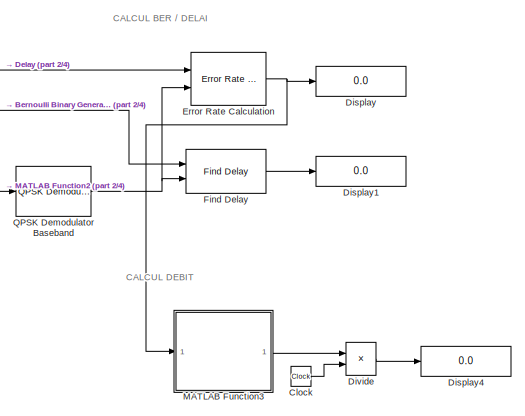
[diagram: root canvas - part 1/4, top right region]
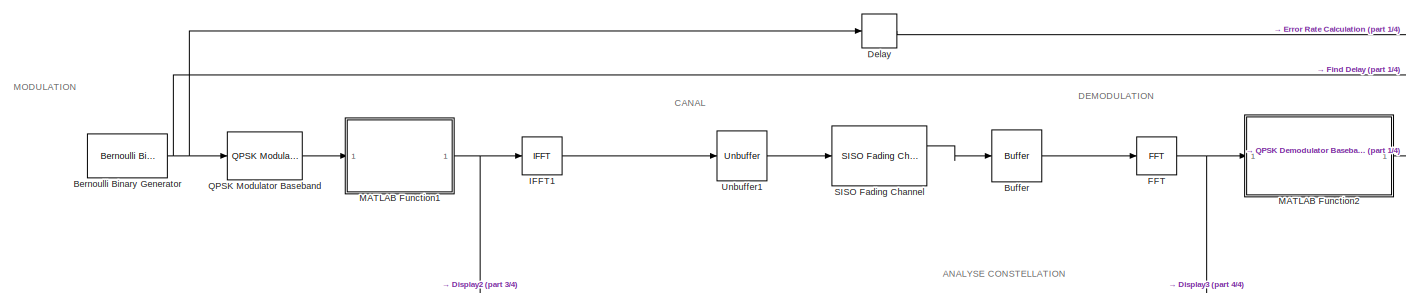
[diagram: root canvas - part 2/4, top center region]
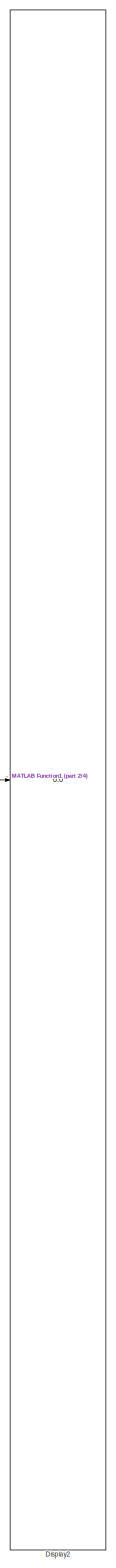
[diagram: root canvas - part 3/4, center side, full height]
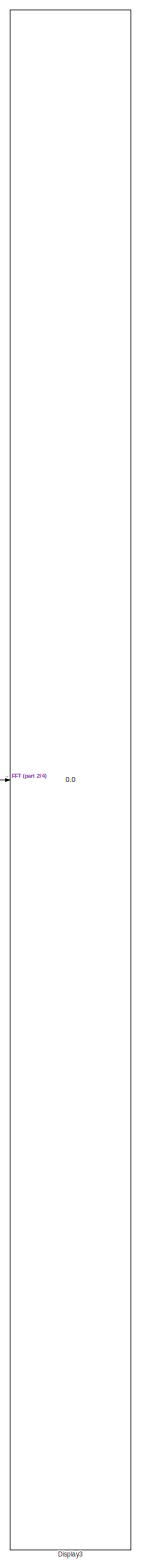
[diagram: root canvas - part 4/4, right side, full height]
MODEL slx_8597013de382
KIND model
CONFIG AbsTol = auto
CONFIG EnableMultiTasking = off
CONFIG FixedStep = auto
CONFIG InitFcn = %global Ts\n%global nbSymboles\n%global ratioPiloSymb\n%global puissanceDeDeux\n%global nbPilotes\n%global nbZeros\n%global nbDeBits\n\nclear all;\n\nTs = 6e-6;\nnbDeBits = 400\nnbSymboles = nbDeBits/2\nratioPiloSymb = 20\npuissanceDeDeux = 256\n\nnbPilotes = nbSymboles/ratioPiloSymb;\nnbZeros = puissanceDeDeux - nbSymboles - nbPilotes\n\n\n
CONFIG MaxStep = auto
CONFIG MinStep = auto
CONFIG PreLoadFcn = %global Ts\n%global nbSymboles\n%global ratioPiloSymb\n%global puissanceDeDeux\n%global nbPilotes\n%global nbZeros\n%global nbDeBits\n\nclear all;\n\nTs = 6e-6;\nnbDeBits = 180\nnbSymboles = nbDeBits/2\nratioPiloSymb = 3\npuissanceDeDeux = 128\n\nnbPilotes = nbSymboles/ratioPiloSymb;\nnbZeros = puissanceDeDeux - nbSymboles - nbPilotes\n\n\n\n
CONFIG RelTol = 1e-3
CONFIG SampleTimeConstraint = Unconstrained
CONFIG Solver = FixedStepDiscrete
CONFIG SolverName = FixedStepDiscrete
CONFIG StartTime = 0.0
CONFIG StopTime = inf
WORKSPACE source: MAT-file member
WORKSPACE MCOS: class17 (value not decoded)
BLOCK [Reference] Bernoulli Binary Generator  REF=commrandsrc3/Bernoulli Binary
Generator
  Ports = [0, 1]
  SourceBlock = commrandsrc3/Bernoulli Binary\nGenerator
  SourceProductBaseCode = CM
  SourceProductName = Communications Toolbox
  SourceType = Bernoulli Binary Generator
BLOCK [Buffer] Buffer
  N = puissanceDeDeux
  OutputFrames = off
BLOCK [Clock] Clock
BLOCK [Delay] Delay
  DelayLength = 1
  InitialCondition = 0
  InputPortMap = u0
  Ports = [1, 1]
BLOCK [Display] Display
  Decimation = 1
  Ports = [1]
BLOCK [Display] Display1
  Decimation = 1
  Ports = [1]
BLOCK [Display] Display2
  Decimation = 1
  Ports = [1]
BLOCK [Display] Display3
  Decimation = 1
  Ports = [1]
BLOCK [Display] Display4
  Decimation = 1
  Ports = [1]
BLOCK [Product] Divide
  InputSameDT = off
  Inputs = */
  OutDataTypeStr = Inherit: Inherit via internal rule
  Ports = [2, 1]
BLOCK [Reference] Error Rate Calculation  REF=commsink2/Error Rate
Calculation
  Ports = [2, 1]
  SourceBlock = commsink2/Error Rate\nCalculation
  SourceProductBaseCode = CM
  SourceProductName = Communications Toolbox
  SourceType = Error Rate Calculation
BLOCK [Reference] FFT  REF=dspxfrm3/FFT
  Ports = [1, 1]
  SourceBlock = dspxfrm3/FFT
  SourceProductBaseCode = DS
  SourceProductName = DSP System Toolbox
  SourceType = FFT
BLOCK [Reference] Find Delay  REF=commutil2/Find Delay
  Ports = [2, 1]
  SourceBlock = commutil2/Find Delay
  SourceProductBaseCode = CM
  SourceProductName = Communications Toolbox
  SourceType = Find Delay
BLOCK [Reference] IFFT1  REF=dspxfrm3/IFFT
  Ports = [1, 1]
  SourceBlock = dspxfrm3/IFFT
  SourceProductBaseCode = DS
  SourceProductName = DSP System Toolbox
  SourceType = IFFT
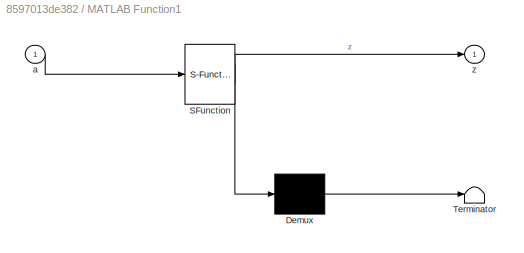
BLOCK [SubSystem] MATLAB Function1
  ErrorFcn = Stateflow.Translate.translate
  PermitHierarchicalResolution = ExplicitOnly
  Ports = [1, 1]
  RequestExecContextInheritance = off
  SFBlockType = MATLAB Function
  TreatAsAtomicUnit = on
BLOCK [Demux] MATLAB Function1/ Demux 
  Outputs = 1
  Ports = [1, 1]
BLOCK [S-Function] MATLAB Function1/ SFunction 
  EnableBusSupport = on
  FunctionName = sf_sfun
  Parameters = nbSymboles,nbZeros,puissanceDeDeux,ratioPiloSymb
  PortCounts = [1 2]
  Ports = [1, 2]
  SFcnIsStateOwnerBlock = off
  SFunctionDeploymentMode = off
  Tag = Stateflow S-Function troisSymbolesAlgoBeton 1
BLOCK [Terminator] MATLAB Function1/ Terminator 
BLOCK [Inport] MATLAB Function1/a
  IconDisplay = Port number
BLOCK [Outport] MATLAB Function1/z
  IconDisplay = Port number
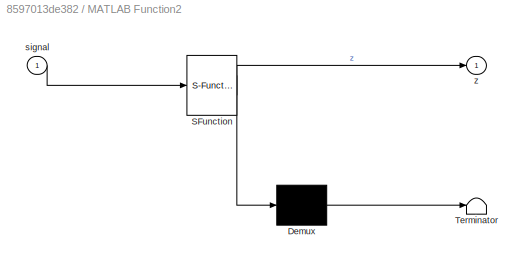
BLOCK [SubSystem] MATLAB Function2
  ErrorFcn = Stateflow.Translate.translate
  PermitHierarchicalResolution = ExplicitOnly
  Ports = [1, 1]
  RequestExecContextInheritance = off
  SFBlockType = MATLAB Function
  TreatAsAtomicUnit = on
BLOCK [Demux] MATLAB Function2/ Demux 
  Outputs = 1
  Ports = [1, 1]
BLOCK [S-Function] MATLAB Function2/ SFunction 
  EnableBusSupport = on
  FunctionName = sf_sfun
  Parameters = nbSymboles,nbZeros,puissanceDeDeux,ratioPiloSymb
  PortCounts = [1 2]
  Ports = [1, 2]
  SFcnIsStateOwnerBlock = off
  SFunctionDeploymentMode = off
  Tag = Stateflow S-Function troisSymbolesAlgoBeton 3
BLOCK [Terminator] MATLAB Function2/ Terminator 
BLOCK [Inport] MATLAB Function2/signal
  IconDisplay = Port number
BLOCK [Outport] MATLAB Function2/z
  IconDisplay = Port number
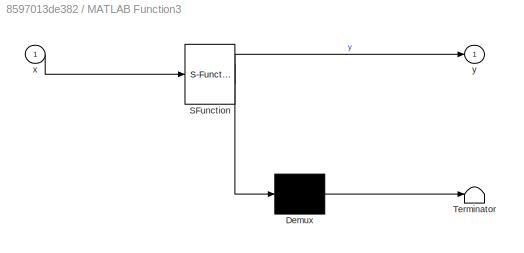
BLOCK [SubSystem] MATLAB Function3
  ErrorFcn = Stateflow.Translate.translate
  PermitHierarchicalResolution = ExplicitOnly
  Ports = [1, 1]
  RequestExecContextInheritance = off
  SFBlockType = MATLAB Function
  TreatAsAtomicUnit = on
BLOCK [Demux] MATLAB Function3/ Demux 
  Outputs = 1
  Ports = [1, 1]
BLOCK [S-Function] MATLAB Function3/ SFunction 
  EnableBusSupport = on
  FunctionName = sf_sfun
  PortCounts = [1 2]
  Ports = [1, 2]
  SFcnIsStateOwnerBlock = off
  SFunctionDeploymentMode = off
  Tag = Stateflow S-Function troisSymbolesAlgoBeton 2
BLOCK [Terminator] MATLAB Function3/ Terminator 
BLOCK [Inport] MATLAB Function3/x
  IconDisplay = Port number
BLOCK [Outport] MATLAB Function3/y
  IconDisplay = Port number
BLOCK [Reference] QPSK Demodulator Baseband  REF=commdigbbndpm3/QPSK
Demodulator
Baseband
  Ports = [1, 1]
  SourceBlock = commdigbbndpm3/QPSK\nDemodulator\nBaseband
  SourceProductBaseCode = CM
  SourceProductName = Communications Toolbox
  SourceType = QPSK Demodulator Baseband
BLOCK [Reference] QPSK Modulator Baseband  REF=commdigbbndpm3/QPSK
Modulator
Baseband
  Ports = [1, 1]
  SourceBlock = commdigbbndpm3/QPSK\nModulator\nBaseband
  SourceProductBaseCode = CM
  SourceProductName = Communications Toolbox
  SourceType = QPSK Modulator Baseband
BLOCK [Reference] SISO Fading Channel  REF=commchan3/SISO Fading Channel
  Ports = [1, 2]
  SourceBlock = commchan3/SISO Fading Channel
  SourceProductBaseCode = CM
  SourceProductName = Communications Toolbox
  SourceType = SISO Fading Channel
BLOCK [Unbuffer] Unbuffer1
  Ports = [1, 1]
  ic = puissanceDeDeux
ANNOTATION (root): ANALYSE CONSTELLATION
ANNOTATION (root): CALCUL BER / DELAI
ANNOTATION (root): CALCUL DEBIT
ANNOTATION (root): CANAL
ANNOTATION (root): DEMODULATION
ANNOTATION (root): MODULATION
NET Bernoulli Binary Generator:1 -> Delay:1, Find Delay:1, QPSK Modulator Baseband:1
LINE Buffer:1 -> FFT:1
LINE Clock:1 -> Divide:2
LINE Delay:1 -> Error Rate Calculation:1
LINE Divide:1 -> Display4:1
NET Error Rate Calculation:1 -> Display:1, MATLAB Function3:1
NET FFT:1 -> Display3:1, MATLAB Function2:1
LINE Find Delay:1 -> Display1:1
LINE IFFT1:1 -> Unbuffer1:1
NET MATLAB Function1:1 -> Display2:1, IFFT1:1
LINE MATLAB Function2:1 -> QPSK Demodulator Baseband:1
LINE MATLAB Function3:1 -> Divide:1
NET QPSK Demodulator Baseband:1 -> Error Rate Calculation:2, Find Delay:2
LINE QPSK Modulator Baseband:1 -> MATLAB Function1:1
LINE SISO Fading Channel:1 -> Buffer:1
LINE Unbuffer1:1 -> SISO Fading Channel:1
note: NET lines group one-source signal fan-out (src -> all destinations, sorted); 1:1 wires keep LINE
CHART MATLAB Function1 states=1 transitions=1
  STATE_LABEL 'eML_blk_kernel()'
  STATE_LABEL 'SCRIPT:\nfunction z = AjoutPilotesZeros(a, puissanceDeDeux, nbZeros, nbSymboles, ratioPiloSymb)\n\nz = complex(zeros(puissanceDeDeux,1));\n\nk = 1;\n\nfor p = 1:nbSymboles\n    if p == nbSymboles/2 + 1\n        z(k : k+nbZeros) = 0;\n        k = k + nbZeros;\n    end\n    if mod(p,ratioPiloSymb) == 1\n        z(k) = 1;\n        k = k + 1;\n    end\n    z(k) = a(p);\n    k = k + 1;\nend\n'
CHART MATLAB Function3 states=1 transitions=1
  STATE_LABEL 'eML_blk_kernel()'
  STATE_LABEL 'SCRIPT:\nfunction y = CalculDebit(x)\ny = x(3) - x(2);'
CHART MATLAB Function2 states=1 transitions=1
  STATE_LABEL 'eML_blk_kernel()'
  STATE_LABEL 'SCRIPT:\nfunction z = SuppPilotesZerosEgalisation(signal, puissanceDeDeux, nbZeros, nbSymboles, ratioPiloSymb)\n\nz = complex(zeros(nbSymboles,1));\n\nk = 1;\n\ngain = 0;\n\nshift = 0; % Détermine dans si les 0 ont été franchis ou non.\n\nfor p = 1:nbSymboles\n    if k == (puissanceDeDeux)/2 - round(nbZeros/2) +1\n        k = k + nbZeros;\n        shift = 1;\n    end\n    if (mod(k-nbZeros,ratioPiloSymb + 1) == 1...<+224ch>'
